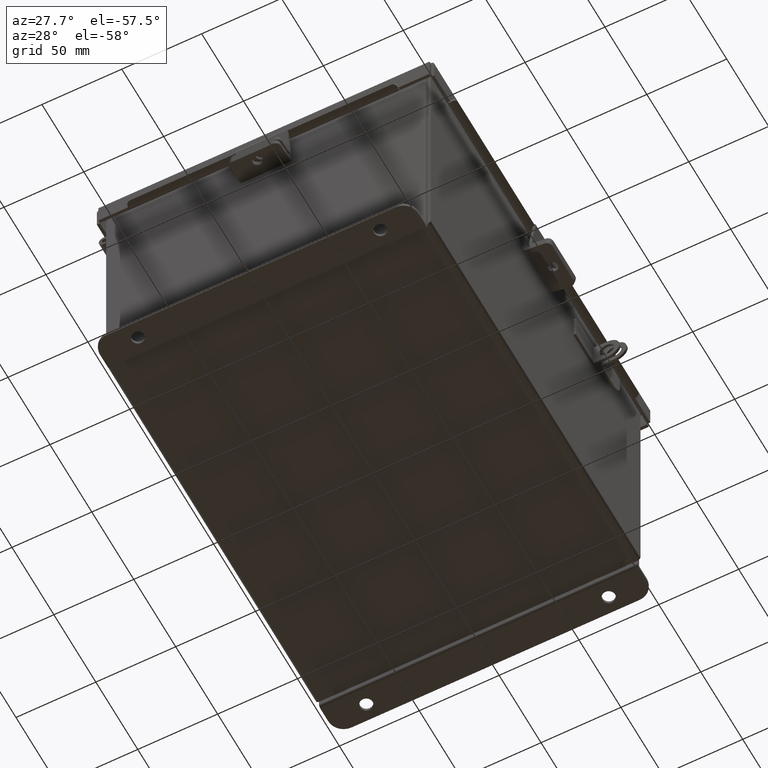
[diagram: clean part render]
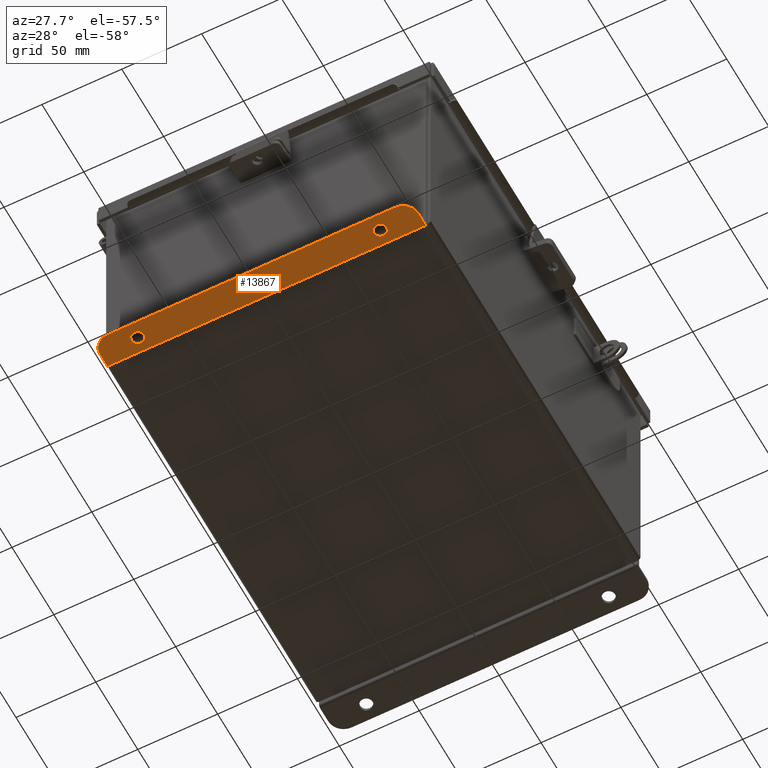
[diagram: same view with one face highlighted and labeled with its STEP entity id]
A machine part, auxiliary view. The second image highlights one B-rep face of the part: STEP entity #13867.
In plain terms, the highlighted planar face has unit normal (0, -0, 1).
Its self-contained STEP definition (entity closure, byte-faithful):
#476 = ORIENTED_EDGE ( 'NONE', *, *, #5140, .T. ) ;
#852 = DIRECTION ( 'NONE',  ( -0.0000000000000000000, -3.702694488566362300E-015, -1.000000000000000000 ) ) ;
#1016 = CARTESIAN_POINT ( 'NONE',  ( 2.987799999999998700, 0.3627999999999997300, -3.187000000000001200 ) ) ;
#1029 = VERTEX_POINT ( 'NONE', #14032 ) ;
#1212 = CARTESIAN_POINT ( 'NONE',  ( -2.987800000000000900, 0.5187999999999999300, -3.187000000000001600 ) ) ;
#1231 = EDGE_CURVE ( 'NONE', #3531, #5457, #15162, .T. ) ;
#1290 = CIRCLE ( 'NONE', #7177, 0.1560000000000001900 ) ;
#1315 = CARTESIAN_POINT ( 'NONE',  ( -2.987800000000000900, 0.3627999999999997300, -3.187000000000001200 ) ) ;
#1860 = CIRCLE ( 'NONE', #3109, 0.1560000000000001900 ) ;
#2014 = CARTESIAN_POINT ( 'NONE',  ( 3.925299999999998700, 0.01300000000000120000, -3.187000000000000300 ) ) ;
#2019 = EDGE_LOOP ( 'NONE', ( #8624, #3040 ) ) ;
#2146 = AXIS2_PLACEMENT_3D ( 'NONE', #10837, #3213, #12127 ) ;
#2290 = DIRECTION ( 'NONE',  ( 0.0000000000000000000, 1.000000000000000000, -3.502369222646487000E-015 ) ) ;
#2613 = DIRECTION ( 'NONE',  ( 0.0000000000000000000, 1.000000000000000000, -3.502369222646487000E-015 ) ) ;
#2639 = DIRECTION ( 'NONE',  ( 0.0000000000000000000, -3.362274453740631800E-015, -1.000000000000000000 ) ) ;
#2675 = CARTESIAN_POINT ( 'NONE',  ( -3.925300000000000900, 0.3627999999999997300, -3.187000000000001200 ) ) ;
#3040 = ORIENTED_EDGE ( 'NONE', *, *, #14816, .F. ) ;
#3044 = CARTESIAN_POINT ( 'NONE',  ( 0.0000000000000000000, -1.092739197465705300E-014, -3.187000000000000300 ) ) ;
#3050 = CARTESIAN_POINT ( 'NONE',  ( 2.987799999999998700, 0.3627999999999997300, -3.187000000000001200 ) ) ;
#3059 = CARTESIAN_POINT ( 'NONE',  ( -2.987800000000000900, 0.2067999999999996000, -3.187000000000000700 ) ) ;
#3109 = AXIS2_PLACEMENT_3D ( 'NONE', #10272, #2639, #11553 ) ;
#3130 = CIRCLE ( 'NONE', #15302, 0.3750000000000000600 ) ;
#3213 = DIRECTION ( 'NONE',  ( -0.0000000000000000000, -3.702694488566362300E-015, -1.000000000000000000 ) ) ;
#3322 = CARTESIAN_POINT ( 'NONE',  ( -3.925300000000000900, 0.01300000000000010700, -3.187000000000000300 ) ) ;
#3531 = VERTEX_POINT ( 'NONE', #4441 ) ;
#3618 = EDGE_CURVE ( 'NONE', #12779, #12087, #14181, .T. ) ;
#3718 = LINE ( 'NONE', #5035, #7097 ) ;
#3741 = CARTESIAN_POINT ( 'NONE',  ( 3.925299999999998700, 0.3627999999999997300, -3.187000000000001200 ) ) ;
#3986 = EDGE_CURVE ( 'NONE', #5457, #12087, #9384, .T. ) ;
#4341 = DIRECTION ( 'NONE',  ( 0.0000000000000000000, 3.702694488566362300E-015, 1.000000000000000000 ) ) ;
#4346 = DIRECTION ( 'NONE',  ( 0.0000000000000000000, 1.000000000000000000, -3.502369222646487000E-015 ) ) ;
#4407 = DIRECTION ( 'NONE',  ( -4.919856193148104900E-031, -1.000000000000000000, 3.702694488566362300E-015 ) ) ;
#4441 = CARTESIAN_POINT ( 'NONE',  ( 3.550299999999998700, 0.7378000000000000100, -3.187000000000002900 ) ) ;
#5035 = CARTESIAN_POINT ( 'NONE',  ( -2.035385365534024800E-024, 0.7378000000000000100, -3.187000000000002900 ) ) ;
#5140 = EDGE_CURVE ( 'NONE', #12779, #6137, #10740, .T. ) ;
#5253 = ORIENTED_EDGE ( 'NONE', *, *, #3986, .T. ) ;
#5457 = VERTEX_POINT ( 'NONE', #3741 ) ;
#6009 = ORIENTED_EDGE ( 'NONE', *, *, #3618, .F. ) ;
#6137 = VERTEX_POINT ( 'NONE', #2675 ) ;
#6325 = VERTEX_POINT ( 'NONE', #3059 ) ;
#6657 = DIRECTION ( 'NONE',  ( 4.919856193148104900E-031, 1.000000000000000000, -3.702694488566362300E-015 ) ) ;
#6724 = EDGE_CURVE ( 'NONE', #6325, #12366, #6885, .T. ) ;
#6885 = CIRCLE ( 'NONE', #12918, 0.1560000000000001900 ) ;
#7097 = VECTOR ( 'NONE', #13959, 39.37007874015748100 ) ;
#7177 = AXIS2_PLACEMENT_3D ( 'NONE', #1016, #9949, #2290 ) ;
#7343 = VECTOR ( 'NONE', #6657, 39.37007874015748100 ) ;
#8084 = ORIENTED_EDGE ( 'NONE', *, *, #10792, .T. ) ;
#8116 = EDGE_LOOP ( 'NONE', ( #476, #16184, #8084, #10906, #5253, #6009 ) ) ;
#8487 = CARTESIAN_POINT ( 'NONE',  ( -3.550300000000000500, 0.3627999999999997300, -3.187000000000001200 ) ) ;
#8530 = VERTEX_POINT ( 'NONE', #13349 ) ;
#8624 = ORIENTED_EDGE ( 'NONE', *, *, #11518, .F. ) ;
#8813 = CARTESIAN_POINT ( 'NONE',  ( 2.987799999999998700, 0.5187999999999999300, -3.187000000000001600 ) ) ;
#8980 = VECTOR ( 'NONE', #4407, 39.37007874015748100 ) ;
#9220 = FACE_BOUND ( 'NONE', #2019, .T. ) ;
#9384 = LINE ( 'NONE', #13321, #8980 ) ;
#9729 = CIRCLE ( 'NONE', #14768, 0.1560000000000001900 ) ;
#9775 = DIRECTION ( 'NONE',  ( 0.0000000000000000000, -1.000000000000000000, 4.370956789862820400E-015 ) ) ;
#9837 = EDGE_CURVE ( 'NONE', #12366, #6325, #1860, .T. ) ;
#9949 = DIRECTION ( 'NONE',  ( 0.0000000000000000000, -3.362274453740631800E-015, -1.000000000000000000 ) ) ;
#10237 = DIRECTION ( 'NONE',  ( 0.0000000000000000000, -3.362274453740631800E-015, -1.000000000000000000 ) ) ;
#10272 = CARTESIAN_POINT ( 'NONE',  ( -2.987800000000000900, 0.3627999999999997300, -3.187000000000001200 ) ) ;
#10593 = EDGE_CURVE ( 'NONE', #6137, #1029, #3130, .T. ) ;
#10670 = PLANE ( 'NONE',  #13161 ) ;
#10740 = LINE ( 'NONE', #11730, #7343 ) ;
#10792 = EDGE_CURVE ( 'NONE', #1029, #3531, #3718, .T. ) ;
#10837 = CARTESIAN_POINT ( 'NONE',  ( 3.550299999999998700, 0.3627999999999997300, -3.187000000000001200 ) ) ;
#10906 = ORIENTED_EDGE ( 'NONE', *, *, #1231, .T. ) ;
#10949 = DIRECTION ( 'NONE',  ( 1.000000000000000000, 4.910036603141682400E-031, -0.0000000000000000000 ) ) ;
#11384 = VERTEX_POINT ( 'NONE', #8813 ) ;
#11518 = EDGE_CURVE ( 'NONE', #11384, #8530, #1290, .T. ) ;
#11553 = DIRECTION ( 'NONE',  ( 0.0000000000000000000, 1.000000000000000000, -3.502369222646487000E-015 ) ) ;
#11580 = VECTOR ( 'NONE', #10949, 39.37007874015748100 ) ;
#11730 = CARTESIAN_POINT ( 'NONE',  ( -3.925300000000000900, -1.202013117212275700E-014, -3.187000000000000300 ) ) ;
#11745 = ORIENTED_EDGE ( 'NONE', *, *, #6724, .F. ) ;
#11968 = DIRECTION ( 'NONE',  ( 0.0000000000000000000, -3.362274453740631800E-015, -1.000000000000000000 ) ) ;
#12087 = VERTEX_POINT ( 'NONE', #14773 ) ;
#12127 = DIRECTION ( 'NONE',  ( 0.0000000000000000000, -1.000000000000000000, 4.370956789862820400E-015 ) ) ;
#12366 = VERTEX_POINT ( 'NONE', #1212 ) ;
#12619 = FACE_BOUND ( 'NONE', #14995, .T. ) ;
#12779 = VERTEX_POINT ( 'NONE', #3322 ) ;
#12918 = AXIS2_PLACEMENT_3D ( 'NONE', #1315, #10237, #2613 ) ;
#13009 = FACE_OUTER_BOUND ( 'NONE', #8116, .T. ) ;
#13161 = AXIS2_PLACEMENT_3D ( 'NONE', #3044, #4341, #13244 ) ;
#13244 = DIRECTION ( 'NONE',  ( -4.919856193148104900E-031, -1.000000000000000000, 3.702694488566362300E-015 ) ) ;
#13321 = CARTESIAN_POINT ( 'NONE',  ( 3.925299999999998700, -1.092739197465705300E-014, -3.187000000000000300 ) ) ;
#13349 = CARTESIAN_POINT ( 'NONE',  ( 2.987799999999998700, 0.2067999999999996000, -3.187000000000000700 ) ) ;
#13867 = ADVANCED_FACE ( 'NONE', ( #12619, #9220, #13009 ), #10670, .F. ) ;
#13959 = DIRECTION ( 'NONE',  ( 1.000000000000000000, 4.910036603141682400E-031, 0.0000000000000000000 ) ) ;
#14032 = CARTESIAN_POINT ( 'NONE',  ( -3.550300000000000500, 0.7378000000000000100, -3.187000000000002900 ) ) ;
#14181 = LINE ( 'NONE', #2014, #11580 ) ;
#14768 = AXIS2_PLACEMENT_3D ( 'NONE', #3050, #11968, #4346 ) ;
#14773 = CARTESIAN_POINT ( 'NONE',  ( 3.925299999999998700, 0.01300000000000010700, -3.187000000000000300 ) ) ;
#14816 = EDGE_CURVE ( 'NONE', #8530, #11384, #9729, .T. ) ;
#14995 = EDGE_LOOP ( 'NONE', ( #16389, #11745 ) ) ;
#15162 = CIRCLE ( 'NONE', #2146, 0.3750000000000000600 ) ;
#15302 = AXIS2_PLACEMENT_3D ( 'NONE', #8487, #852, #9775 ) ;
#16184 = ORIENTED_EDGE ( 'NONE', *, *, #10593, .T. ) ;
#16389 = ORIENTED_EDGE ( 'NONE', *, *, #9837, .F. ) ;